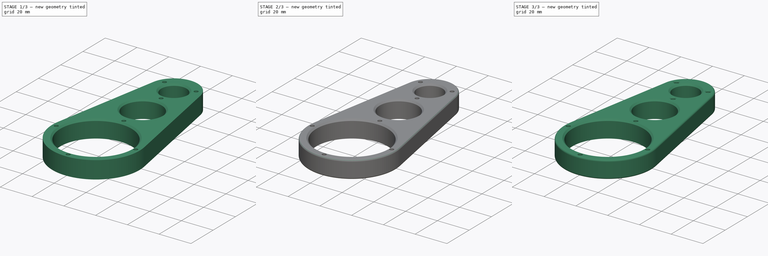
[diagram: build sequence overview — one tinted view per stage of 3, left to right]
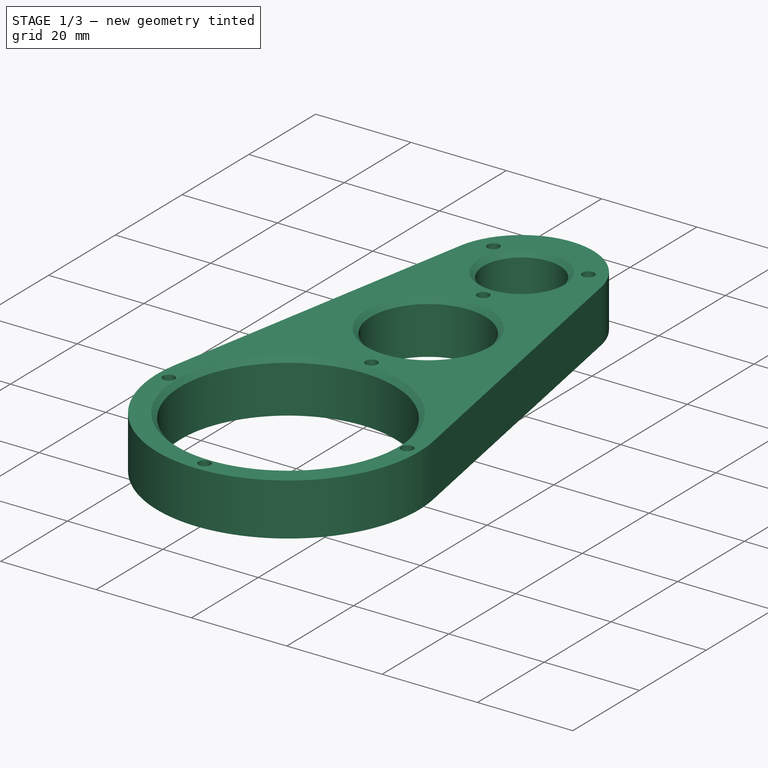
[diagram: stage 1 of 3 — iso view after this stage's code; geometry added in this stage tinted green]
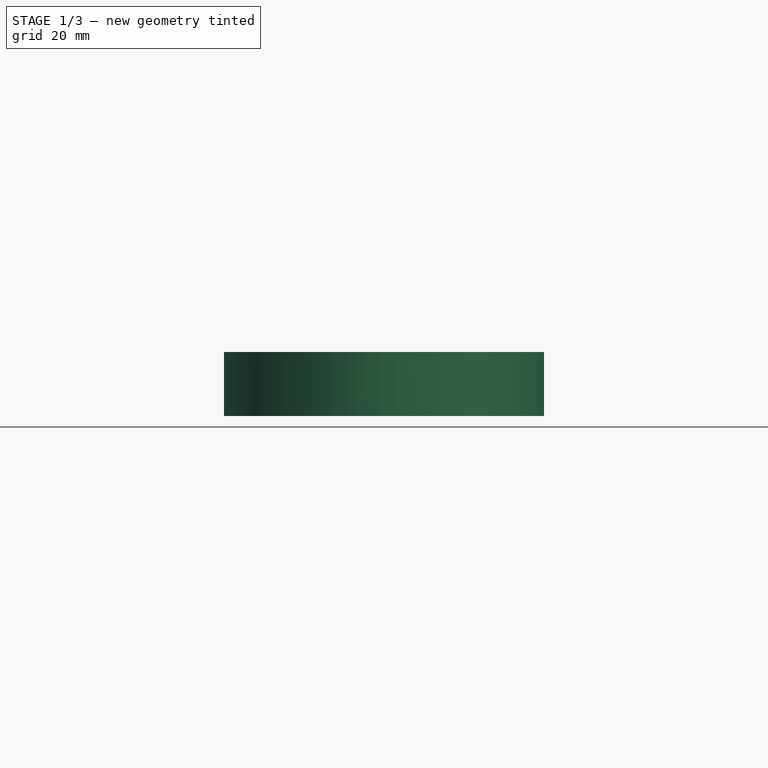
[diagram: stage 1 of 3 — front view after this stage's code; geometry added in this stage tinted green]
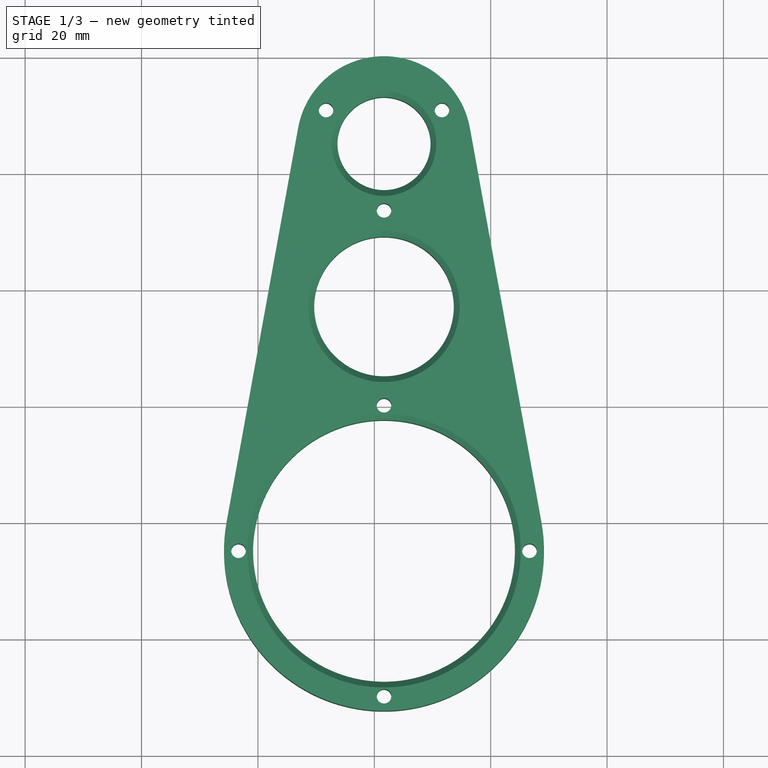
[diagram: stage 1 of 3 — top view after this stage's code; geometry added in this stage tinted green]
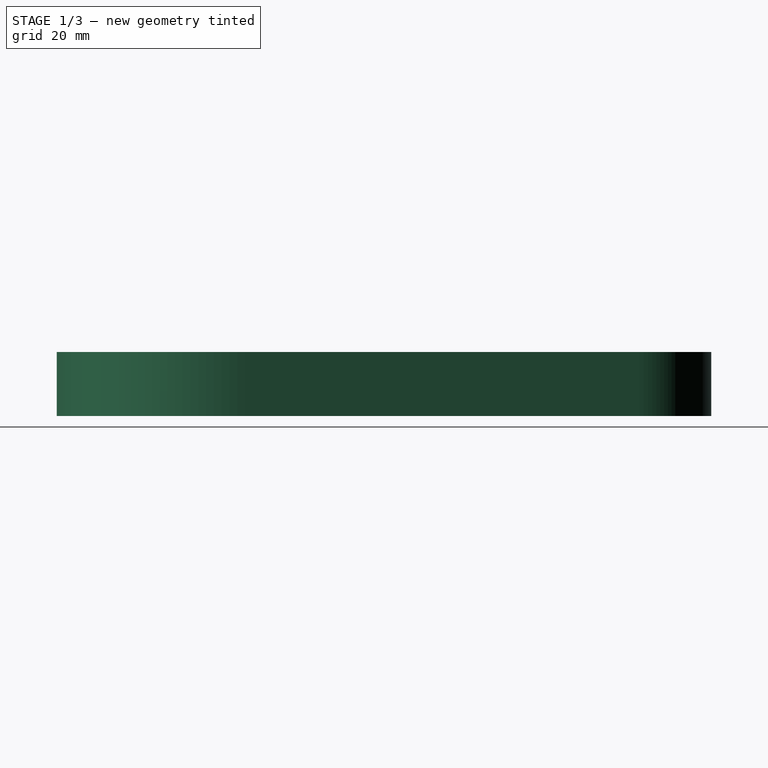
[diagram: stage 1 of 3 — right view after this stage's code; geometry added in this stage tinted green]
FCSTD DOCUMENT  (FreeCAD 0.19R24276 (Git))
Label: Shatun_L70_d45_d16
License: All rights reserved
LicenseURL: http://en.wikipedia.org/wiki/All_rights_reserved
objects: PartDesign::Chamfer×5, Sketcher::SketchObject×2, PartDesign::Fillet×2, PartDesign::Pad×1, PartDesign::Body×1
note: 19 computed .brp shape members not serialized (recipe doc carries the construction recipe); baked Part::Feature solids carry a one-line shape summary decoded from their .brp

FEATURE [Sketcher::SketchObject] Sketch  label="Sketch_paper_knife"
  FullyConstrained = false
  MapMode = 5
  Support = -> [XY_Plane]
  sketch-geometry (42):
    g0: Circle CenterX=0 CenterY=0 CenterZ=0 NormalX=0 NormalY=0 NormalZ=1 AngleXU=0 Radius=70
    g1: LineSegment StartX=0 StartY=0 StartZ=0 EndX=-30.5434 EndY=62.9849 EndZ=0
    g2: Circle CenterX=200 CenterY=0 CenterZ=0 NormalX=0 NormalY=0 NormalZ=1 AngleXU=0 Radius=70
    g3: LineSegment StartX=200 StartY=0 StartZ=0 EndX=169.457 EndY=62.9849 EndZ=0
    g4: LineSegment StartX=169.457 StartY=62.9849 StartZ=0 EndX=-30.5434 EndY=62.9849 EndZ=0
    g5: LineSegment StartX=-234.473 StartY=320.288 StartZ=0 EndX=-134.473 EndY=320.288 EndZ=0
    g6: LineSegment StartX=-224.473 StartY=338.288 StartZ=0 EndX=-124.473 EndY=338.288 EndZ=0
    g7: LineSegment StartX=-134.473 StartY=320.288 StartZ=0 EndX=-124.473 EndY=338.288 EndZ=0
    g8: LineSegment StartX=-234.473 StartY=320.288 StartZ=0 EndX=-224.473 EndY=338.288 EndZ=0
    g9: Circle CenterX=-140.473 CenterY=329.288 CenterZ=0 NormalX=0 NormalY=0 NormalZ=1 AngleXU=0 Radius=2.3784
    g10: LineSegment StartX=-233.473 StartY=322.088 StartZ=0 EndX=-133.473 EndY=322.088 EndZ=0
    g11: Circle CenterX=0 CenterY=0 CenterZ=0 NormalX=0 NormalY=0 NormalZ=1 AngleXU=0 Radius=37.5
    g12: Circle CenterX=200 CenterY=0 CenterZ=0 NormalX=0 NormalY=0 NormalZ=1 AngleXU=0 Radius=37.5
    g13: Circle CenterX=169.457 CenterY=62.9849 CenterZ=0 NormalX=0 NormalY=0 NormalZ=1 AngleXU=0 Radius=8
    g14: Circle CenterX=-30.5434 CenterY=62.9849 CenterZ=0 NormalX=0 NormalY=0 NormalZ=1 AngleXU=0 Radius=8
    g15: Circle CenterX=169.457 CenterY=62.9849 CenterZ=0 NormalX=0 NormalY=0 NormalZ=1 AngleXU=0 Radius=2.5
    g16: Circle CenterX=-30.5434 CenterY=62.9849 CenterZ=0 NormalX=0 NormalY=0 NormalZ=1 AngleXU=0 Radius=2.5
    g17: Circle CenterX=22.2785 CenterY=154.482 CenterZ=0 NormalX=0 NormalY=0 NormalZ=1 AngleXU=0 Radius=2.5
    g18: LineSegment StartX=-100.221 StartY=182.69 StartZ=0 EndX=22.2785 EndY=182.69 EndZ=0
    g19: ArcOfCircle CenterX=27.0798 CenterY=159.482 CenterZ=0 NormalX=0 NormalY=0 NormalZ=1 AngleXU=0 Radius=16 StartAngle=4.17347 EndAngle=5.96536
    g20: LineSegment StartX=27.0798 StartY=159.482 StartZ=0 EndX=27.0798 EndY=143.482 EndZ=0
    g21: ArcOfCircle CenterX=-75.7215 CenterY=162.006 CenterZ=0 NormalX=0 NormalY=0 NormalZ=1 AngleXU=0 Radius=8 StartAngle=3.71141 EndAngle=5.43055
    g22: LineSegment StartX=-107.721 StartY=168.69 StartZ=0 EndX=-100.221 EndY=182.69 EndZ=0
    g23: LineSegment StartX=-107.721 StartY=168.69 StartZ=0 EndX=-103.721 EndY=157.69 EndZ=0
    g24: ArcOfCircle CenterX=-18.2109 CenterY=83.6932 CenterZ=0 NormalX=0 NormalY=0 NormalZ=1 AngleXU=0 Radius=72.29 StartAngle=1.03221 EndAngle=1.56403
    g25: LineSegment StartX=-17.7215 StartY=155.982 StartZ=0 EndX=-70.4575 EndY=155.982 EndZ=0
    g26: LineSegment StartX=-82.4575 StartY=157.69 StartZ=0 EndX=-103.721 EndY=157.69 EndZ=0
    g27: ArcOfCircle CenterX=16.2785 CenterY=157.242 CenterZ=0 NormalX=0 NormalY=0 NormalZ=1 AngleXU=0 Radius=26.1461 StartAngle=6.17743 EndAngle=7.62244
    g28: LineSegment StartX=22.2785 StartY=154.482 StartZ=0 EndX=42.2785 EndY=154.482 EndZ=0
    g29: LineSegment StartX=22.2785 StartY=154.482 StartZ=0 EndX=22.2785 EndY=182.69 EndZ=0
    g30: ArcOfCircle CenterX=-96.7215 CenterY=168.69 CenterZ=0 NormalX=0 NormalY=0 NormalZ=1 AngleXU=0 Radius=2.5 StartAngle=1.5708 EndAngle=4.71239
    g31: ArcOfCircle CenterX=-6.72148 CenterY=168.69 CenterZ=0 NormalX=0 NormalY=0 NormalZ=1 AngleXU=0 Radius=2.5 StartAngle=4.71239 EndAngle=7.85398
    g32: LineSegment StartX=-96.7215 StartY=166.19 StartZ=0 EndX=-6.72148 EndY=166.19 EndZ=0
    g33: LineSegment StartX=-96.7215 StartY=171.19 StartZ=0 EndX=-6.72148 EndY=171.19 EndZ=0
    g34: LineSegment StartX=-27.3628 StartY=293.719 StartZ=0 EndX=-27.3628 EndY=353.575 EndZ=0
    g35: LineSegment StartX=-190.721 StartY=159.69 StartZ=0 EndX=-90.7215 EndY=159.69 EndZ=0
    g36: LineSegment StartX=-180.721 StartY=177.69 StartZ=0 EndX=-80.7215 EndY=177.69 EndZ=0
    g37: LineSegment StartX=-90.7215 StartY=159.69 StartZ=0 EndX=-80.7215 EndY=177.69 EndZ=0
    g38: LineSegment StartX=-190.721 StartY=159.69 StartZ=0 EndX=-180.721 EndY=177.69 EndZ=0
    g39: Circle CenterX=-96.7215 CenterY=168.69 CenterZ=0 NormalX=0 NormalY=0 NormalZ=1 AngleXU=0 Radius=2.3784
    g40: LineSegment StartX=-189.721 StartY=161.49 StartZ=0 EndX=-89.7215 EndY=161.49 EndZ=0
    g41: LineSegment StartX=-69.9968 StartY=0.665106 StartZ=0 EndX=-139.997 EndY=0.665106 EndZ=0
  constraints (110):
    c: Coincident(g0,g-1)
    c: Coincident(g1,g-1)
    c: PointOnObject(g1,g0)
    c: Diameter(g0) = 140
    c: PointOnObject(g2,g-1)
    c: DistanceX(g-1,g2) = 200
    c: Equal(g2,g0)
    c: Coincident(g3,g2)
    c: PointOnObject(g3,g2)
    c: Coincident(g4,g3)
    c: Coincident(g4,g1)
    c: DistanceX(g4,g4) = 200
    c: Horizontal(g5)
    c: Horizontal(g6)
    c: Coincident(g7,g5)
    c: Coincident(g7,g6)
    c: Coincident(g8,g5)
    c: Coincident(g6,g8)
    c: Parallel(g8,g7)
    c: DistanceY(g5,g6) = 18
    c: DistanceX(g5,g5) = 100
    c: DistanceX(g5,g6) = 110
    c: DistanceX(g9,g5) = 6
    c: DistanceY(g5,g9) = 9
    c: PointOnObject(g10,g8)
    c: PointOnObject(g10,g7)
    c: Horizontal(g10)
    c: DistanceY(g5,g10) = 1.8
    c: Coincident(g11,g-1)
    c: Coincident(g12,g2)
    c: Equal(g12,g11)
    c: Diameter(g12) = 75
    c: Coincident(g13,g3)
    c: Diameter(g13) = 16
    c: Coincident(g14,g1)
    c: Equal(g14,g13)
    c: Coincident(g15,g3)
    c: Coincident(g16,g1)
    c: Equal(g16,g15)
    c: Diameter(g15) = 5
    c: Diameter(g17) = 5
    c: Horizontal(g18)
    c: Coincident(g20,g19)
    c: PointOnObject(g20,g19)
    c: Vertical(g20)
    c: DistanceX(g21,g17) = 98
    c: Diameter(g21) = 16
    c: DistanceX(g21,g21) = 12
    c: Coincident(g23,g22)
    c: DistanceX(g23,g17) = 126
    c: DistanceY(g23,g22) = 11
    c: DistanceY(g23,g22) = 25
    c: DistanceX(g24,g17) = 40
    c: Coincident(g19,g24)
    c: Diameter(g24) = 144.58
    c: Coincident(g25,g24)
    c: Coincident(g25,g21)
    c: Horizontal(g25)
    c: Coincident(g26,g21)
    c: Coincident(g26,g23)
    c: Horizontal(g26)
    c: DistanceX(g22,g23) = 4
    c: Coincident(g27,g19)
    c: Coincident(g18,g27)
    c: Coincident(g18,g22)
    c: DistanceX(g22,g18) = 7.5
    c: Coincident(g28,g17)
    c: Horizontal(g28)
    c: DistanceY(g20,g17) = 11
    c: Diameter(g19) = 32
    c: Coincident(g28,g19)
    c: Coincident(g29,g17)
    c: Coincident(g29,g18)
    c: Vertical(g29)
    c: DistanceX(g27,g17) = 6
    c: DistanceY(g17,g27) = 2.76
    c: DistanceX(g17,g19) = 20
    c: Tangent(g30,g33) = 1.5708
    c: Tangent(g30,g32) = -1.5708
    c: Tangent(g32,g31) = -1.5708
    c: Tangent(g33,g31) = 1.5708
    c: Horizontal(g32)
    c: Equal(g30,g31)
    c: Diameter(g31) = 5
    c: Vertical(g34)
    c: Horizontal(g35)
    c: Horizontal(g36)
    c: Coincident(g37,g35)
    c: Coincident(g37,g36)
    c: Coincident(g38,g35)
    c: Coincident(g36,g38)
    c: Parallel(g38,g37)
    c: DistanceY(g35,g36) = 18
    c: Equal(g5,g35) = 100
    c: DistanceX(g35,g36) = 110
    c: DistanceX(g39,g35) = 6
    c: DistanceY(g35,g39) = 9
    c: PointOnObject(g40,g38)
    c: PointOnObject(g40,g37)
    c: Horizontal(g40)
    c: DistanceY(g35,g40) = 1.8
    c: DistanceY(g23,g30) = 11
    c: Coincident(g39,g30)
    c: DistanceX(g23,g30) = 7
    c: DistanceX(g23,g31) = 97
    c: PointOnObject(g41,g0)
    c: Horizontal(g41)
    c: DistanceX(g41,g41) = 70
    c: DistanceX(g19,g17) = 3.41
    c: DistanceY(g17,g24) = 1.5
FEATURE [Sketcher::SketchObject] Sketch001  label="Sketch001_master_sketch"
  FullyConstrained = false
  MapMode = 5
  Support = -> [XY_Plane]
  sketch-geometry (40):
    g0: Circle CenterX=0 CenterY=0 CenterZ=0 NormalX=0 NormalY=0 NormalZ=1 AngleXU=0 Radius=70
    g1: LineSegment StartX=0 StartY=0 StartZ=0 EndX=-30.5451 EndY=62.9841 EndZ=0
    g2: Circle CenterX=200 CenterY=0 CenterZ=0 NormalX=0 NormalY=0 NormalZ=1 AngleXU=0 Radius=70
    g3: LineSegment StartX=200 StartY=0 StartZ=0 EndX=169.455 EndY=62.9841 EndZ=0
    g4: LineSegment StartX=169.455 StartY=62.9841 StartZ=0 EndX=-30.5451 EndY=62.9841 EndZ=0
    g5: Circle CenterX=0 CenterY=0 CenterZ=0 NormalX=0 NormalY=0 NormalZ=1 AngleXU=0 Radius=37.5
    g6: Circle CenterX=200 CenterY=0 CenterZ=0 NormalX=0 NormalY=0 NormalZ=1 AngleXU=0 Radius=37.5
    g7: Circle CenterX=169.455 CenterY=62.9841 CenterZ=0 NormalX=0 NormalY=0 NormalZ=1 AngleXU=0 Radius=8
    g8: Circle CenterX=-30.5451 CenterY=62.9841 CenterZ=0 NormalX=0 NormalY=0 NormalZ=1 AngleXU=0 Radius=8
    g9: Circle CenterX=169.455 CenterY=62.9841 CenterZ=0 NormalX=0 NormalY=0 NormalZ=1 AngleXU=0 Radius=2.5
    g10: Circle CenterX=-30.5451 CenterY=62.9841 CenterZ=0 NormalX=0 NormalY=0 NormalZ=1 AngleXU=0 Radius=2.5
    g11: Circle CenterX=161.667 CenterY=215.121 CenterZ=0 NormalX=0 NormalY=0 NormalZ=1 AngleXU=0 Radius=22.5
    g12: LineSegment StartX=161.667 StartY=215.121 StartZ=0 EndX=161.667 EndY=285.121 EndZ=0
    g13: Circle CenterX=161.667 CenterY=285.121 CenterZ=0 NormalX=0 NormalY=0 NormalZ=1 AngleXU=0 Radius=8
    g14: ArcOfCircle CenterX=161.667 CenterY=285.121 CenterZ=0 NormalX=0 NormalY=0 NormalZ=1 AngleXU=0 Radius=15 StartAngle=0.179534 EndAngle=2.96206
    g15: LineSegment StartX=161.667 StartY=285.121 StartZ=0 EndX=176.426 EndY=287.8 EndZ=0
    g16: LineSegment StartX=161.667 StartY=285.121 StartZ=0 EndX=146.908 EndY=287.8 EndZ=0
    g17: ArcOfCircle CenterX=161.667 CenterY=215.121 CenterZ=0 NormalX=0 NormalY=0 NormalZ=1 AngleXU=0 Radius=27.5 StartAngle=2.96206 EndAngle=6.46272
    g18: LineSegment StartX=161.667 StartY=215.121 StartZ=0 EndX=188.725 EndY=220.032 EndZ=0
    g19: LineSegment StartX=161.667 StartY=215.121 StartZ=0 EndX=134.609 EndY=220.032 EndZ=0
    g20: LineSegment StartX=176.426 StartY=287.8 StartZ=0 EndX=188.725 EndY=220.032 EndZ=0
    g21: LineSegment StartX=134.609 StartY=220.032 StartZ=0 EndX=146.908 EndY=287.8 EndZ=0
    g22: LineSegment StartX=161.667 StartY=273.621 StartZ=0 EndX=171.626 EndY=290.871 EndZ=0
    g23: LineSegment StartX=171.626 StartY=290.871 StartZ=0 EndX=151.708 EndY=290.871 EndZ=0
    g24: LineSegment StartX=151.708 StartY=290.871 StartZ=0 EndX=161.667 EndY=273.621 EndZ=0
    g25: Circle CenterX=161.667 CenterY=285.121 CenterZ=0 NormalX=0 NormalY=0 NormalZ=1 AngleXU=0 Radius=11.5
    g26: Circle CenterX=171.626 CenterY=290.871 CenterZ=0 NormalX=0 NormalY=0 NormalZ=1 AngleXU=0 Radius=1.25
    g27: Circle CenterX=161.667 CenterY=273.621 CenterZ=0 NormalX=0 NormalY=0 NormalZ=1 AngleXU=0 Radius=1.25
    g28: Circle CenterX=151.708 CenterY=290.871 CenterZ=0 NormalX=0 NormalY=0 NormalZ=1 AngleXU=0 Radius=1.25
    g29: LineSegment StartX=161.667 StartY=240.121 StartZ=0 EndX=136.667 EndY=215.121 EndZ=0
    g30: LineSegment StartX=136.667 StartY=215.121 StartZ=0 EndX=161.667 EndY=190.121 EndZ=0
    g31: LineSegment StartX=161.667 StartY=190.121 StartZ=0 EndX=186.667 EndY=215.121 EndZ=0
    g32: LineSegment StartX=186.667 StartY=215.121 StartZ=0 EndX=161.667 EndY=240.121 EndZ=0
    g33: Circle CenterX=161.667 CenterY=215.121 CenterZ=0 NormalX=0 NormalY=0 NormalZ=1 AngleXU=0 Radius=25
    g34: Circle CenterX=161.667 CenterY=240.121 CenterZ=0 NormalX=0 NormalY=0 NormalZ=1 AngleXU=0 Radius=1.25
    g35: Circle CenterX=186.667 CenterY=215.121 CenterZ=0 NormalX=0 NormalY=0 NormalZ=1 AngleXU=0 Radius=1.25
    g36: Circle CenterX=161.667 CenterY=190.121 CenterZ=0 NormalX=0 NormalY=0 NormalZ=1 AngleXU=0 Radius=1.25
    g37: Circle CenterX=136.667 CenterY=215.121 CenterZ=0 NormalX=0 NormalY=0 NormalZ=1 AngleXU=0 Radius=1.25
    g38: LineSegment StartX=161.667 StartY=273.621 StartZ=0 EndX=161.667 EndY=257.121 EndZ=0
    g39: Circle CenterX=161.667 CenterY=257.121 CenterZ=0 NormalX=0 NormalY=0 NormalZ=1 AngleXU=0 Radius=12
  constraints (94):
    c: Coincident(g0,g-1)
    c: Coincident(g1,g-1)
    c: PointOnObject(g1,g0)
    c: Diameter(g0) = 140
    c: PointOnObject(g2,g-1)
    c: DistanceX(g-1,g2) = 200
    c: Equal(g2,g0)
    c: Coincident(g3,g2)
    c: PointOnObject(g3,g2)
    c: Coincident(g4,g3)
    c: Coincident(g4,g1)
    c: DistanceX(g4,g4) = 200
    c: Coincident(g5,g-1)
    c: Coincident(g6,g2)
    c: Equal(g6,g5)
    c: Diameter(g6) = 75
    c: Coincident(g7,g3)
    c: Diameter(g7) = 16
    c: Coincident(g8,g1)
    c: Equal(g8,g7)
    c: Coincident(g9,g3)
    c: Coincident(g10,g1)
    c: Equal(g10,g9)
    c: Diameter(g9) = 5
    c: Diameter(g11) = 45
    c: Coincident(g12,g11)
    c: Distance(g12) = 70
    c: Coincident(g13,g12)
    c: Diameter(g13) = 16
    c: Coincident(g14,g12)
    c: Diameter(g14) = 30
    c: Coincident(g15,g12)
    c: Coincident(g16,g12)
    c: Coincident(g17,g11)
    c: Diameter(g17) = 55
    c: Coincident(g18,g11)
    c: Coincident(g19,g11)
    c: Coincident(g20,g15)
    c: Coincident(g20,g18)
    c: Coincident(g21,g19)
    c: Coincident(g21,g16)
    c: Perpendicular(g18,g20)
    c: Perpendicular(g19,g21)
    c: Perpendicular(g20,g15)
    c: Perpendicular(g21,g16)
    c: Coincident(g17,g18)
    c: Coincident(g17,g19)
    c: Coincident(g14,g15)
    c: Coincident(g14,g16)
    c: Coincident(g22,g23)
    c: Coincident(g23,g24)
    c: Coincident(g24,g22)
    c: Equal(g22,g23)
    c: Equal(g22,g24)
    c: PointOnObject(g22,g25)
    c: PointOnObject(g23,g25)
    c: PointOnObject(g24,g25)
    c: Coincident(g25,g13)
    c: PointOnObject(g24,g12)
    c: Diameter(g25) = 23
    c: Coincident(g26,g22)
    c: Coincident(g27,g22)
    c: Coincident(g28,g23)
    c: Diameter(g28) = 2.5
    c: Equal(g28,g26)
    c: Equal(g28,g27)
    c: Coincident(g29,g30)
    c: Coincident(g30,g31)
    c: Coincident(g31,g32)
    c: Coincident(g32,g29)
    c: Equal(g29,g30)
    c: Equal(g29,g31)
    c: Equal(g29,g32)
    c: PointOnObject(g29,g33)
    c: PointOnObject(g30,g33)
    c: PointOnObject(g31,g33)
    c: PointOnObject(g32,g33)
    c: Coincident(g33,g11)
    c: PointOnObject(g32,g12)
    c: Diameter(g33) = 50
    c: Coincident(g34,g29)
    c: Coincident(g35,g31)
    c: Coincident(g36,g30)
    c: Coincident(g37,g29)
    c: Diameter(g37) = 2.5
    c: Equal(g37,g34)
    c: Equal(g37,g35)
    c: Equal(g37,g36)
    c: Coincident(g38,g27)
    c: PointOnObject(g38,g12)
    c: Vertical(g12)
    c: Coincident(g39,g38)
    c: Diameter(g39) = 24
    c: DistanceY(g38,g13) = 28
FEATURE [PartDesign::Pad] Pad
  Direction = (1,1,1)
  Length = 11
  Length2 = 100
  Profile = -> Sketch001
  Type = 0
FEATURE [PartDesign::Chamfer] Chamfer
  Angle = 45
  Base = -> Pad [Edge15,Edge18]
  BaseFeature = -> Pad
  ChamferType = 0
  FlipDirection = false
  Size = 1
  Size2 = 1
  SupportTransform = false
FEATURE [PartDesign::Chamfer] Chamfer001
  Angle = 45
  Base = -> Chamfer [Edge23]
  BaseFeature = -> Chamfer
  ChamferType = 0
  FlipDirection = false
  Size = 1
  Size2 = 1
  SupportTransform = false
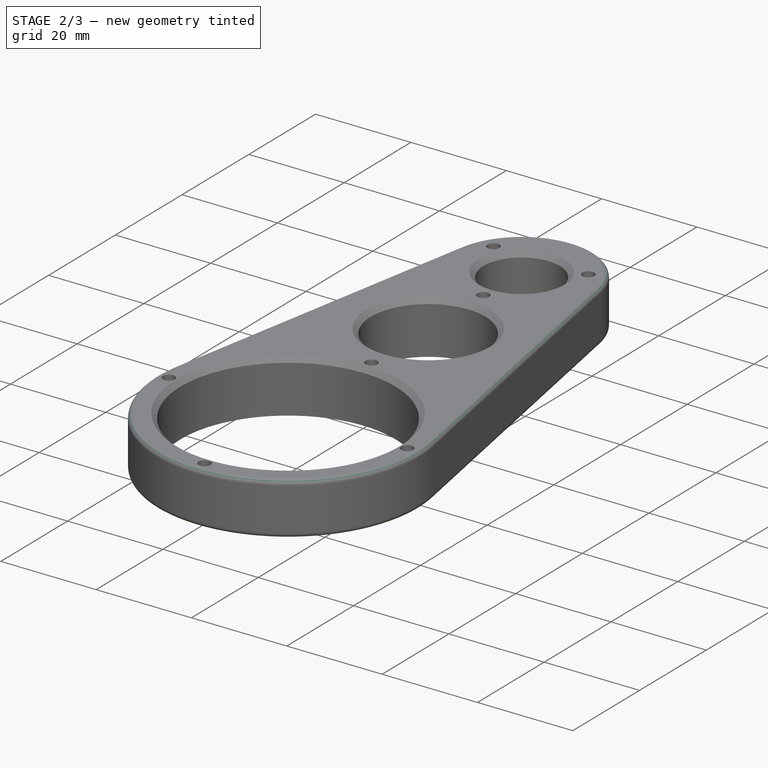
[diagram: stage 2 of 3 — iso view after this stage's code; geometry added in this stage tinted green]
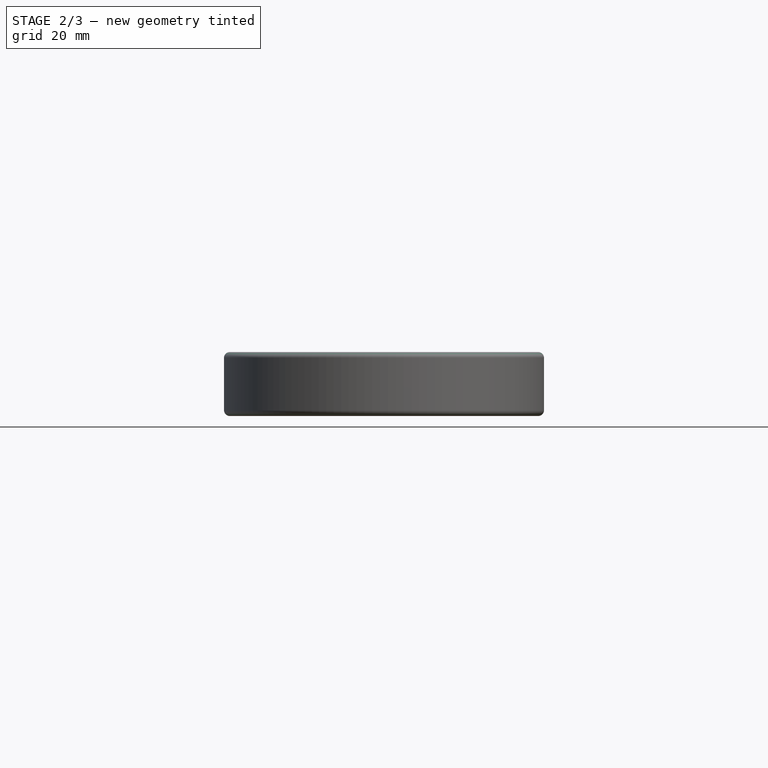
[diagram: stage 2 of 3 — front view after this stage's code; geometry added in this stage tinted green]
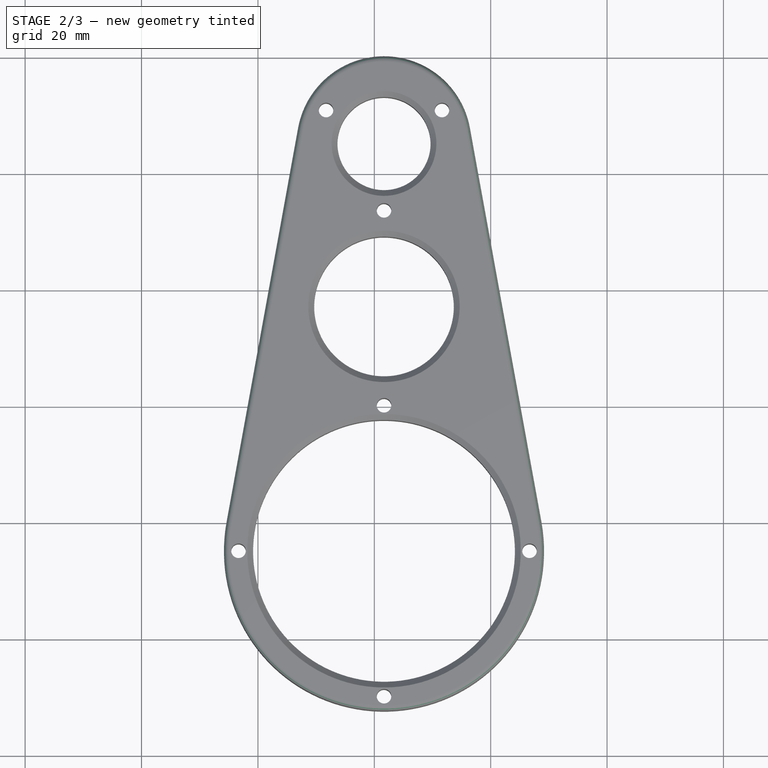
[diagram: stage 2 of 3 — top view after this stage's code; geometry added in this stage tinted green]
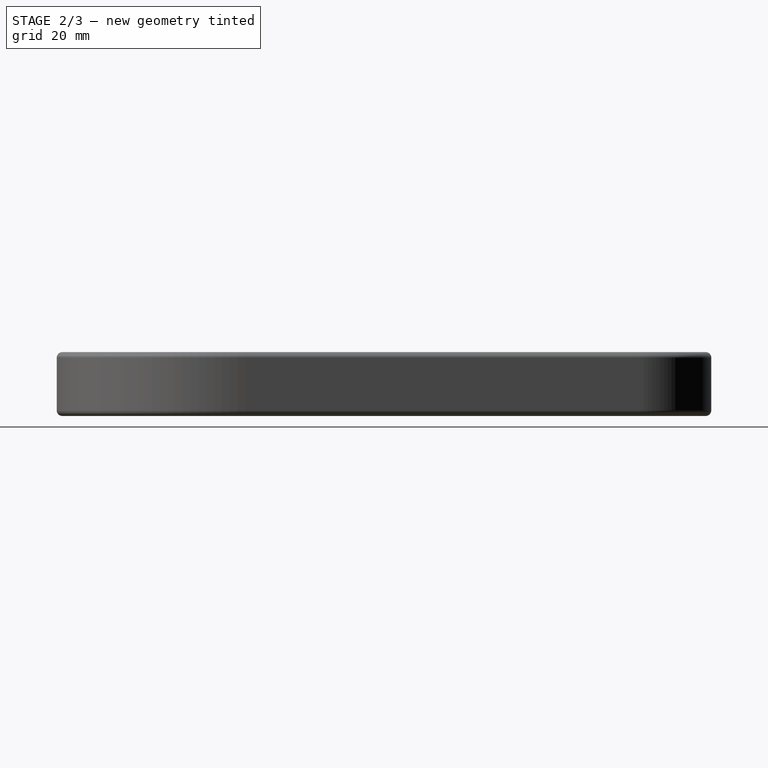
[diagram: stage 2 of 3 — right view after this stage's code; geometry added in this stage tinted green]
FEATURE [PartDesign::Fillet] Fillet
  Base = -> Chamfer001 [Edge6,Edge5,Edge4,Edge3]
  BaseFeature = -> Chamfer001
  Radius = 1
  SupportTransform = false
FEATURE [PartDesign::Fillet] Fillet001
  Base = -> Fillet [Edge44,Edge49,Edge50,Edge46]
  BaseFeature = -> Fillet
  Radius = 1
  SupportTransform = false
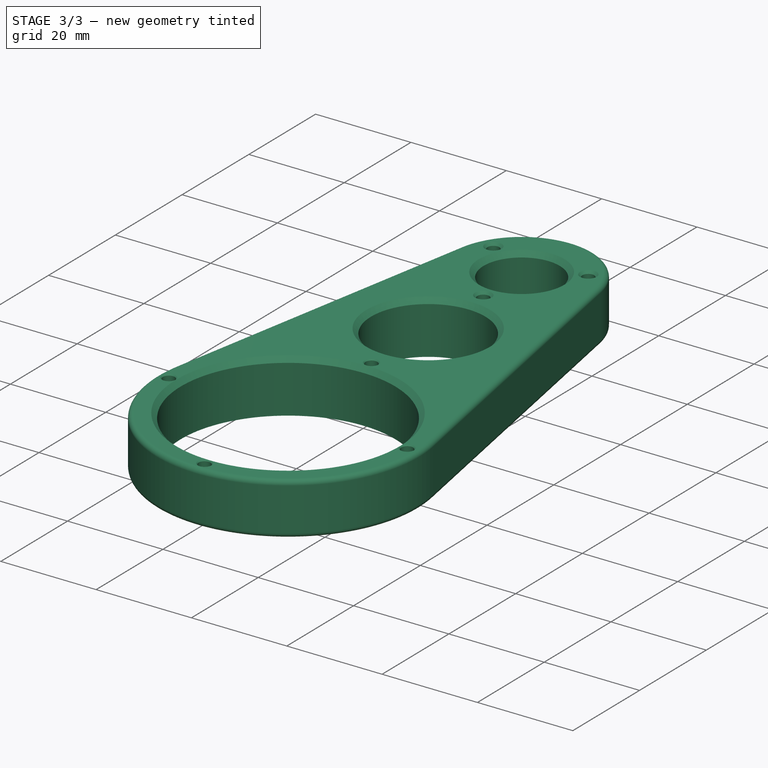
[diagram: stage 3 of 3 — iso view after this stage's code; geometry added in this stage tinted green]
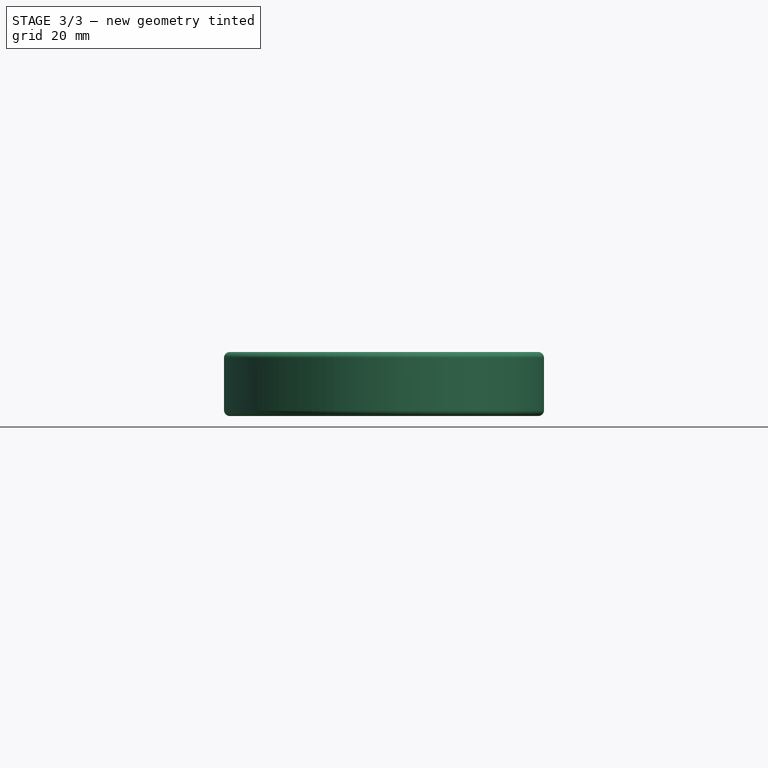
[diagram: stage 3 of 3 — front view after this stage's code; geometry added in this stage tinted green]
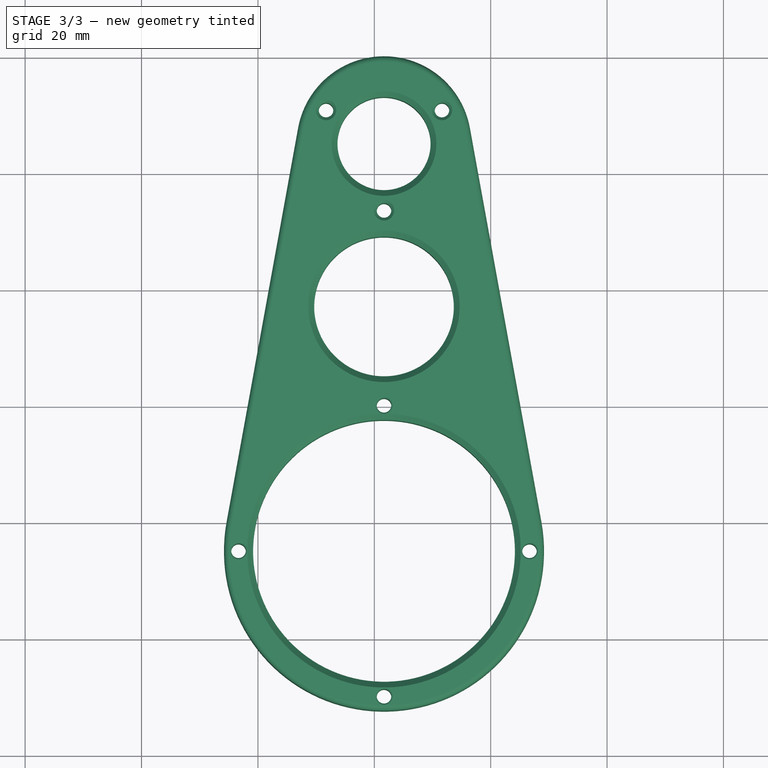
[diagram: stage 3 of 3 — top view after this stage's code; geometry added in this stage tinted green]
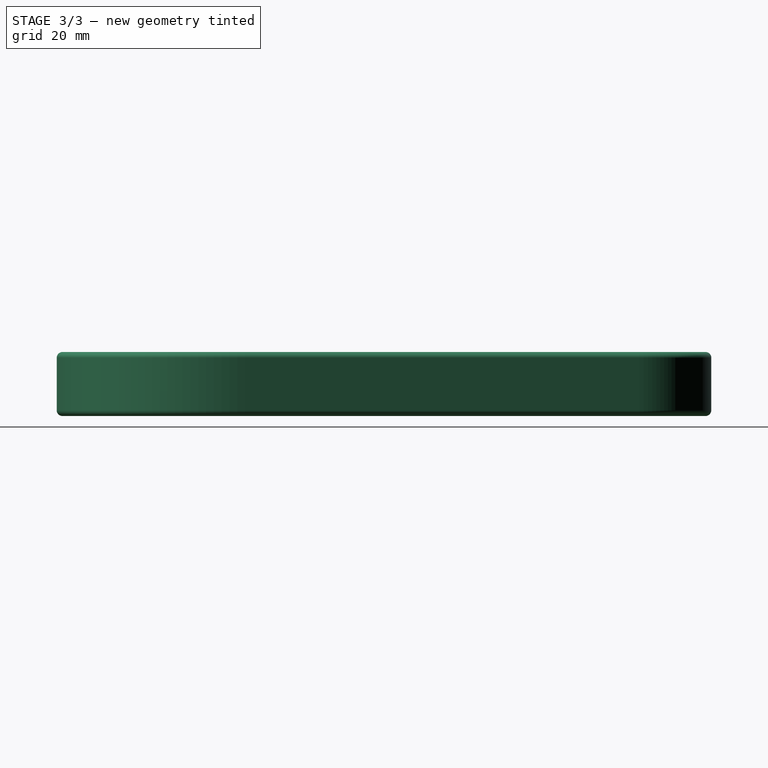
[diagram: stage 3 of 3 — right view after this stage's code; geometry added in this stage tinted green]
FEATURE [PartDesign::Chamfer] Chamfer002
  Angle = 45
  Base = -> Fillet001 [Edge46,Edge45,Edge44]
  BaseFeature = -> Fillet001
  ChamferType = 0
  FlipDirection = false
  Size = 0.5
  Size2 = 1
  SupportTransform = false
FEATURE [PartDesign::Chamfer] Chamfer003
  Angle = 45
  Base = -> Chamfer002 [Edge11]
  BaseFeature = -> Chamfer002
  ChamferType = 0
  FlipDirection = false
  Size = 0.2
  Size2 = 1
  SupportTransform = false
FEATURE [PartDesign::Chamfer] Chamfer004
  Angle = 45
  Base = -> Chamfer003 [Edge11,Edge10,Edge9]
  BaseFeature = -> Chamfer003
  ChamferType = 0
  FlipDirection = false
  Size = 0.2
  Size2 = 1
  SupportTransform = false
FEATURE [PartDesign::Body] Body
  Group = -> [Sketch,Sketch001,Pad,Chamfer,Chamfer001,Fillet,Fillet001,Chamfer002,Chamfer003,Chamfer004]
  Origin = -> Origin
  Tip = -> Chamfer004
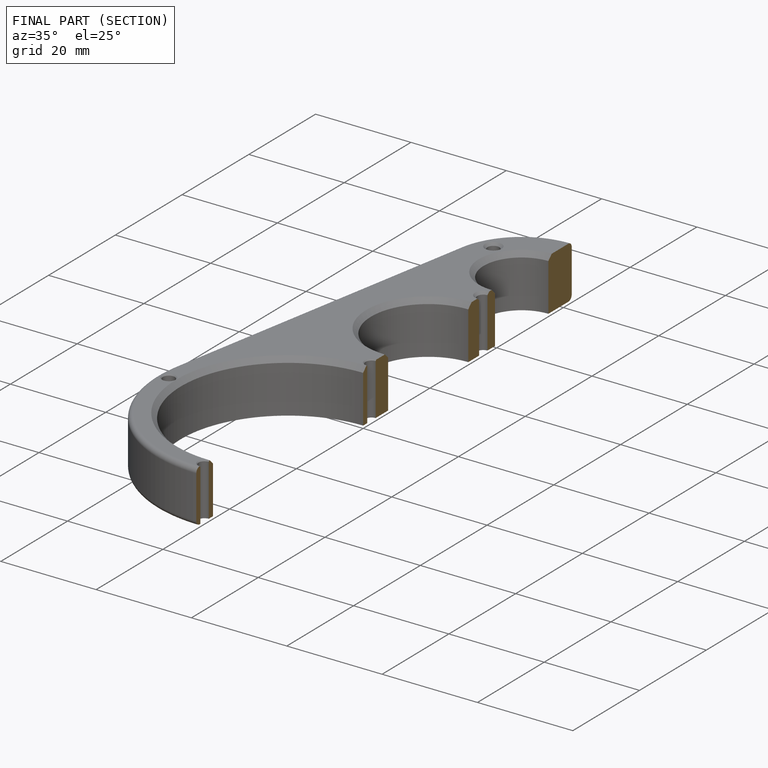
[diagram: finished part — half-section view (interior)]
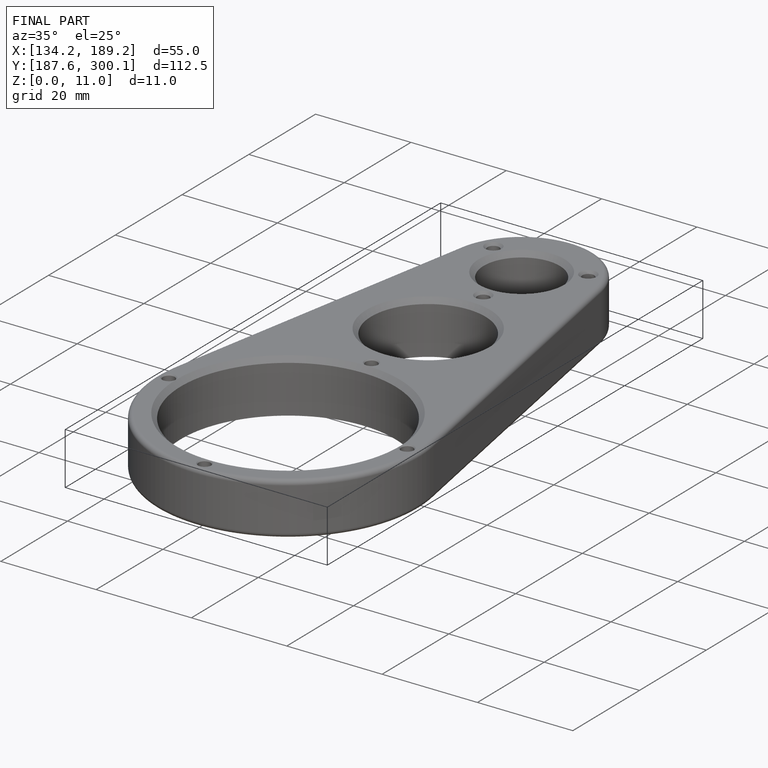
[diagram: finished part — iso view with bounding-box wireframe]
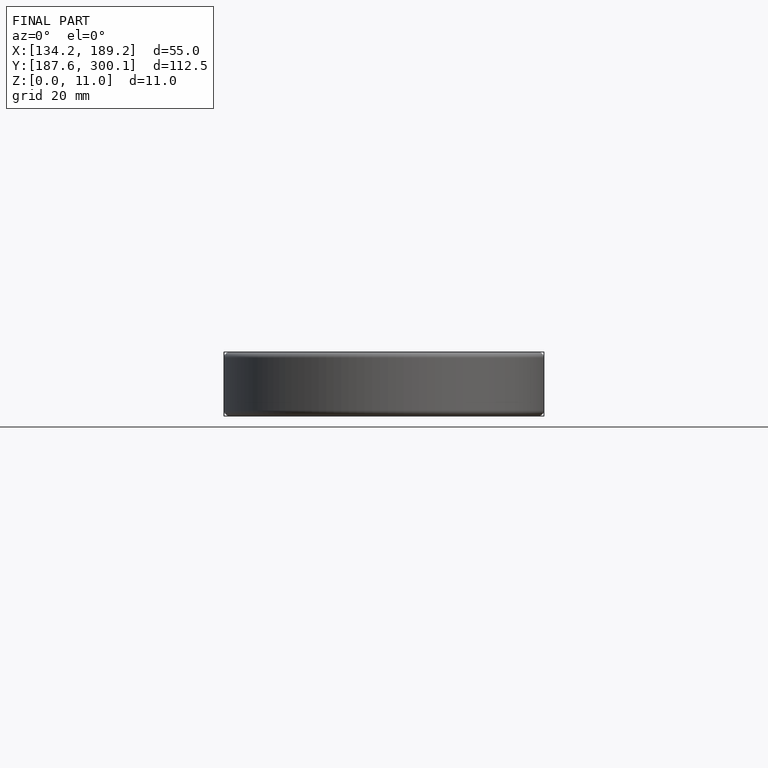
[diagram: finished part — front view with bounding-box wireframe]
